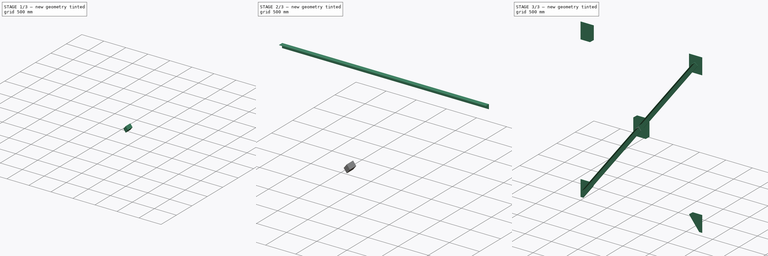
[diagram: build sequence overview — one tinted view per stage of 3, left to right]
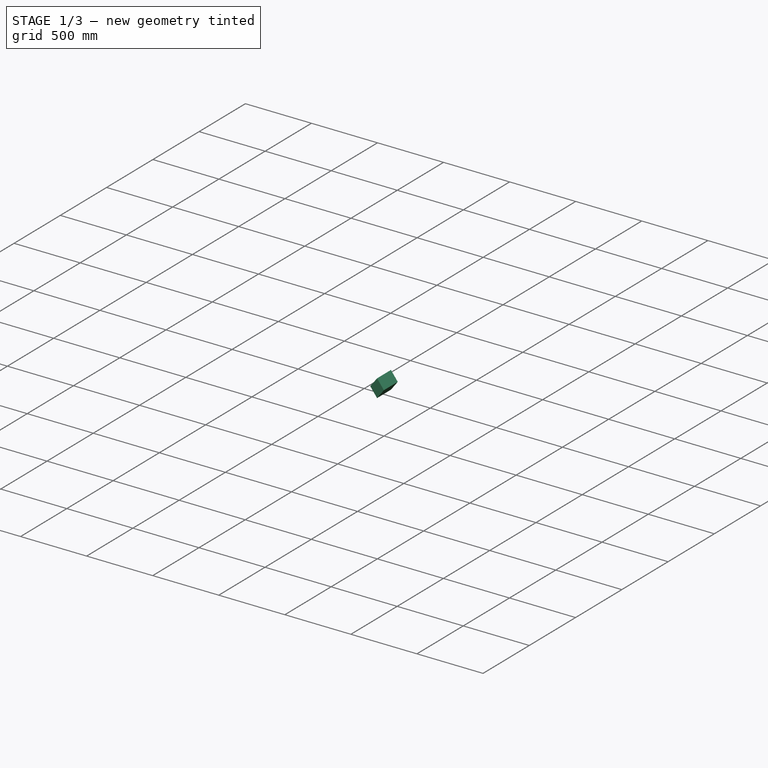
[diagram: stage 1 of 3 — iso view after this stage's code; geometry added in this stage tinted green]
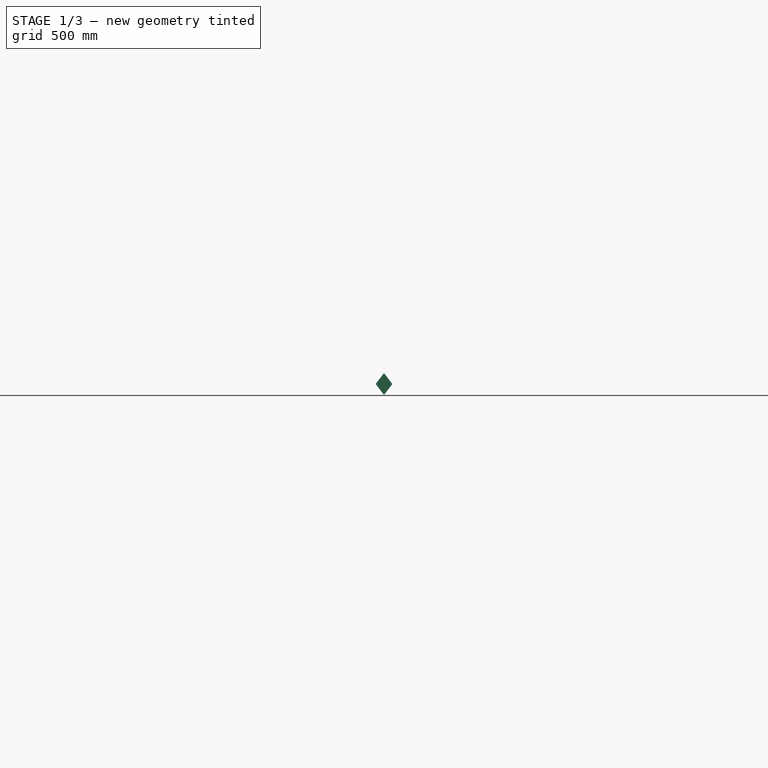
[diagram: stage 1 of 3 — front view after this stage's code; geometry added in this stage tinted green]
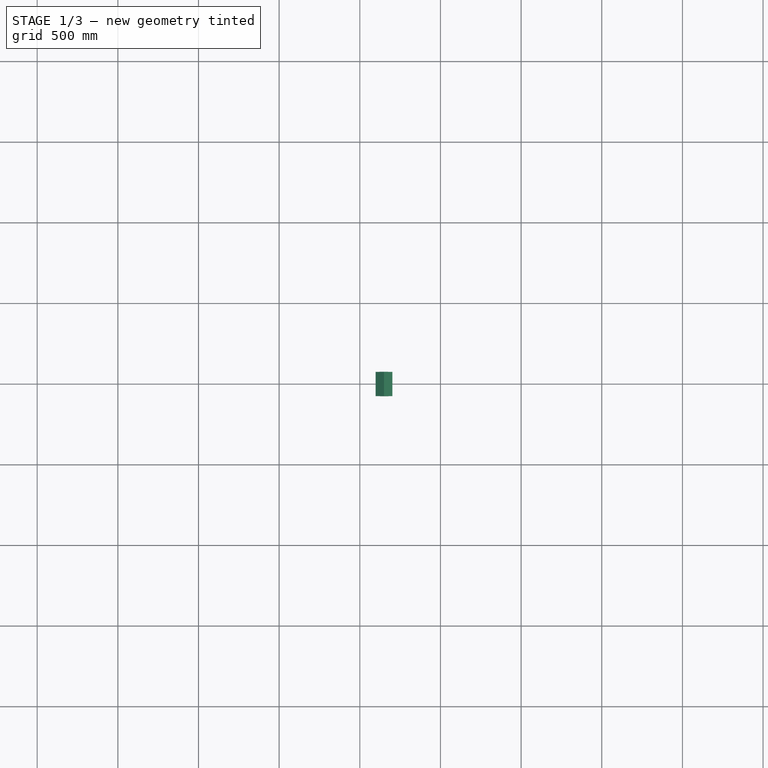
[diagram: stage 1 of 3 — top view after this stage's code; geometry added in this stage tinted green]
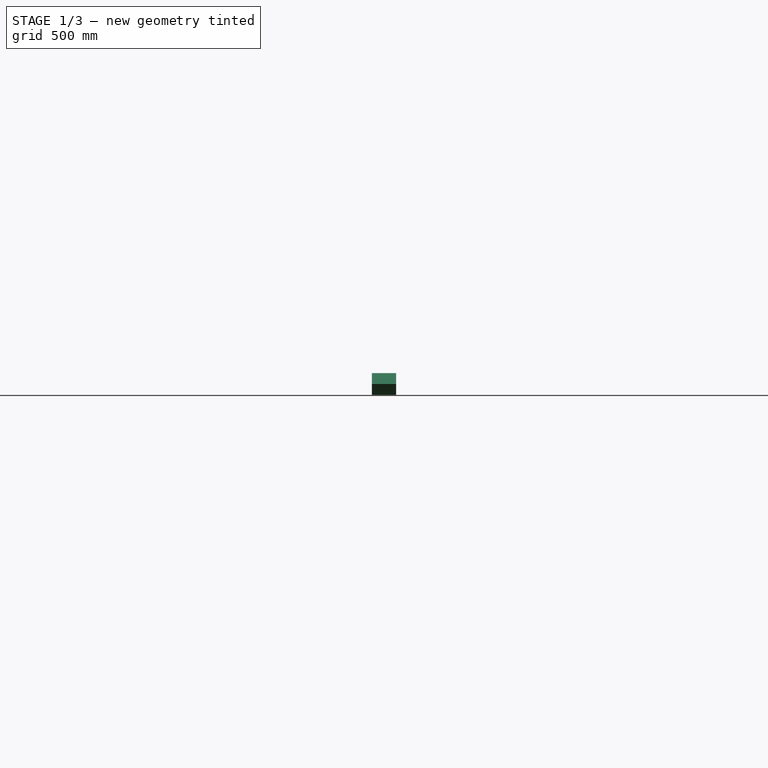
[diagram: stage 1 of 3 — right view after this stage's code; geometry added in this stage tinted green]
FCSTD DOCUMENT  (FreeCAD 1.0R39319 (Git))
Label: steelBrace02
License: All rights reserved
objects: App::Part×3, Sketcher::SketchObject×2, Part::Extrusion×2, Part::FeaturePython×2, Spreadsheet::Sheet×1, Part::Cut×1
note: 9 computed .brp shape members not serialized (recipe doc carries the construction recipe); baked Part::Feature solids carry a one-line shape summary decoded from their .brp

FEATURE [Part::FeaturePython] AngleSteel  # WARN: FeaturePython — macro-defined, semantics opaque (R4)
  A = 75
  B = 75
  JPN = 等辺山形鋼
  L = 3430.21
  Placement = pos=(0,0,0) rot=(-0.57735,-0.57735,0.57735;4.18879rad)
  Solid = true
  Standard = L20x20x3  L=5500
  g0 = 7.85
  mass = 23.4977
  size = 10
  standard = SS_Equal
  t = 3
  type = 00_Angle
  expr: L = Spreadsheet.C0 - Spreadsheet.La
FEATURE [App::Part] Part002
  Group = -> [AngleSteel001]
  Origin = -> Origin002
  Placement = pos=(106.476,-37.5,-2861.12) rot=(0,1,0;-0.916714rad)
  expr: .Placement.Base.x = Spreadsheet.x0
  expr: .Placement.Base.y = -Spreadsheet.B0 / 2
  expr: .Placement.Base.z = -Spreadsheet.H0 + Spreadsheet.y0
  expr: .Placement.Rotation.Angle = -Spreadsheet.k0
FEATURE [Sketcher::SketchObject] Sketch001
  ArcFitTolerance = 1e-06
  FullyConstrained = true
  MakeInternals = false
  Placement = pos=(0,0,0) rot=(1,0,0;1.5708rad)
  expr: Constraints[10] = Spreadsheet.H0
  expr: Constraints[15] = Spreadsheet.k0 * 2
  expr: Constraints[18] = AngleSteel.B + 10
  expr: Constraints[19] = Spreadsheet.H0 / 2
  expr: Constraints[20] = Spreadsheet.W0 / 2
  expr: Constraints[21] = Spreadsheet.k0
  expr: Constraints[22] = Spreadsheet.B0 + 10
  expr: Constraints[9] = Spreadsheet.W0
  sketch-geometry (9):
    g0: LineSegment [constr] StartX=0 StartY=0 StartZ=0 EndX=0 EndY=-3000 EndZ=0
    g1: LineSegment [constr] StartX=0 StartY=-3000 StartZ=0 EndX=2300 EndY=-3000 EndZ=0
    g2: LineSegment [constr] StartX=2300 StartY=-3000 StartZ=0 EndX=2300 EndY=0 EndZ=0
    g3: LineSegment [constr] StartX=2300 StartY=0 StartZ=0 EndX=0 EndY=0 EndZ=0
    g4: GeomPoint [constr] X=1150 Y=-1500 Z=0
    g5: LineSegment StartX=1150 StartY=-1432.54 StartZ=0 EndX=1201.72 EndY=-1500 EndZ=0
    g6: LineSegment StartX=1201.72 StartY=-1500 StartZ=0 EndX=1150 EndY=-1567.46 EndZ=0
    g7: LineSegment StartX=1150 StartY=-1567.46 StartZ=0 EndX=1098.28 EndY=-1500 EndZ=0
    g8: LineSegment StartX=1098.28 StartY=-1500 StartZ=0 EndX=1150 EndY=-1432.54 EndZ=0
  constraints (24):
    c: Coincident(g0,g1)
    c: Coincident(g1,g2)
    c: Coincident(g2,g3)
    c: Coincident(g3,g0)
    c: Vertical(g0)
    c: Vertical(g2)
    c: Horizontal(g1)
    c: Horizontal(g3)
    c: Coincident(g0,g-1)
    c: DistanceX(g1,g1) = 2300
    c: DistanceY(g2,g2) = 3000
    c: Coincident(g5,g6)
    c: Coincident(g6,g7)
    c: Coincident(g7,g8)
    c: Coincident(g8,g5)
    c: Angle(g7,g8) = 1.83343
    c: Parallel(g8,g6)
    c: Parallel(g7,g5)
    c: Distance(g6,g6) = 85
    c: DistanceY(g4,g-1) = 1500
    c: DistanceX(g-1,g4) = 1150
    c: Angle(g3,g8) = 0.916714
    c: Distance(g5,g5) = 85
    c: Symmetric(g5,g6,g4)
FEATURE [Part::Extrusion] Extrude001
  Base = -> Sketch001
  Dir = (0,-1,2e-16)
  DirMode = 2
  FaceMakerClass = Part::FaceMakerBullseye
  FaceMakerMode = 3
  LengthFwd = 150
  LengthRev = 0
  Solid = true
  Symmetric = true
  expr: LengthFwd = AngleSteel.B * 2
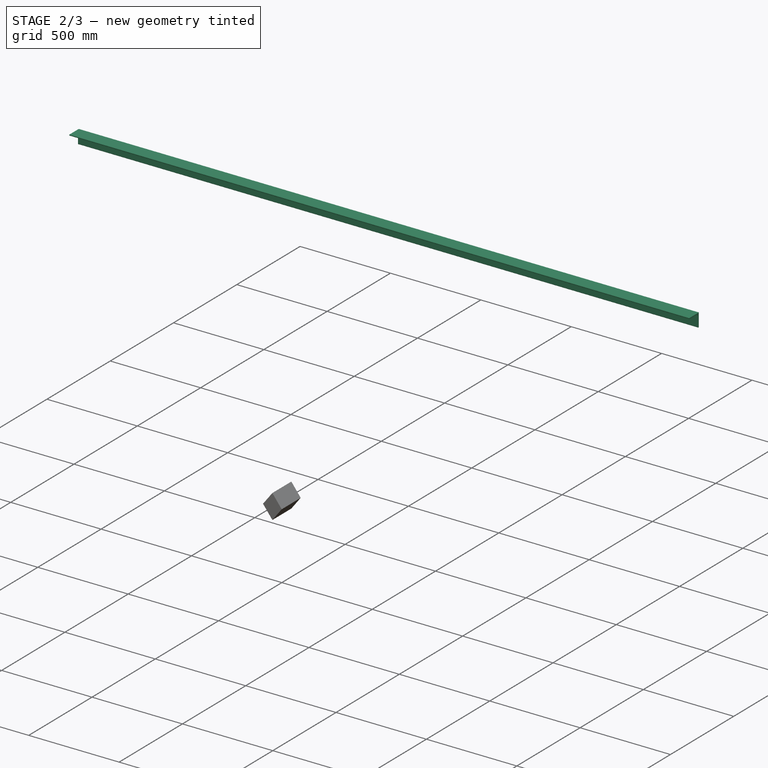
[diagram: stage 2 of 3 — iso view after this stage's code; geometry added in this stage tinted green]
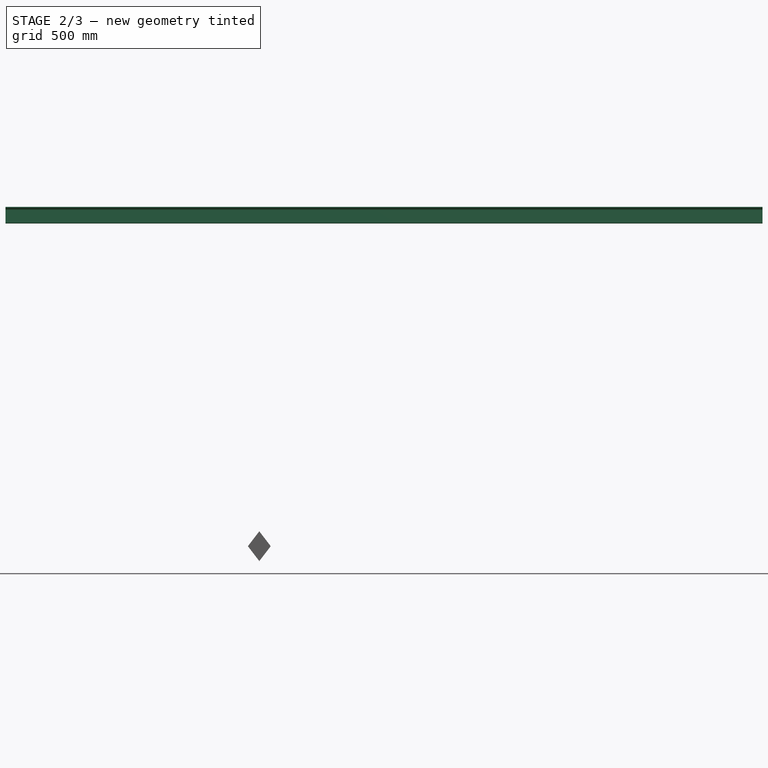
[diagram: stage 2 of 3 — front view after this stage's code; geometry added in this stage tinted green]
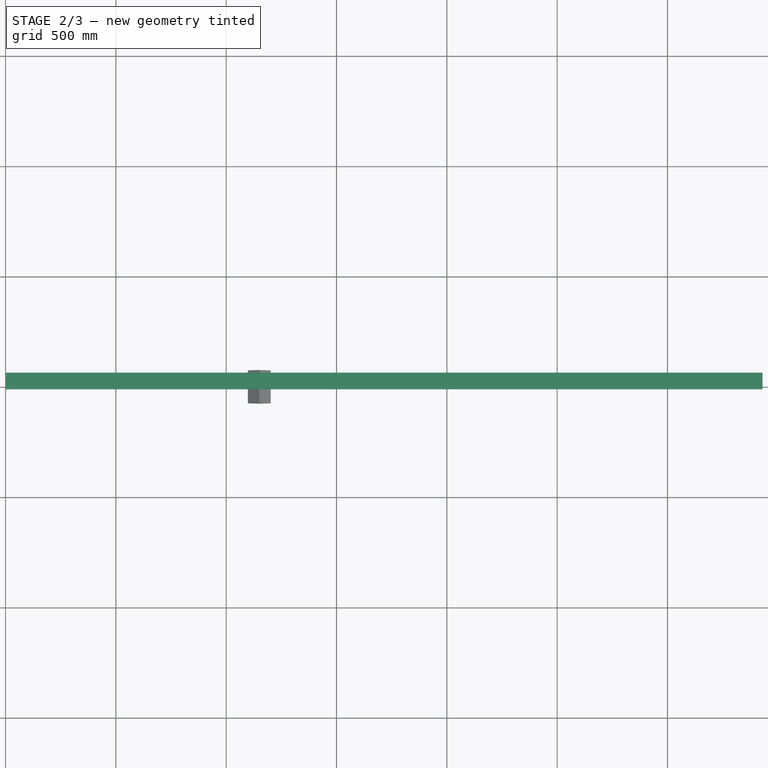
[diagram: stage 2 of 3 — top view after this stage's code; geometry added in this stage tinted green]
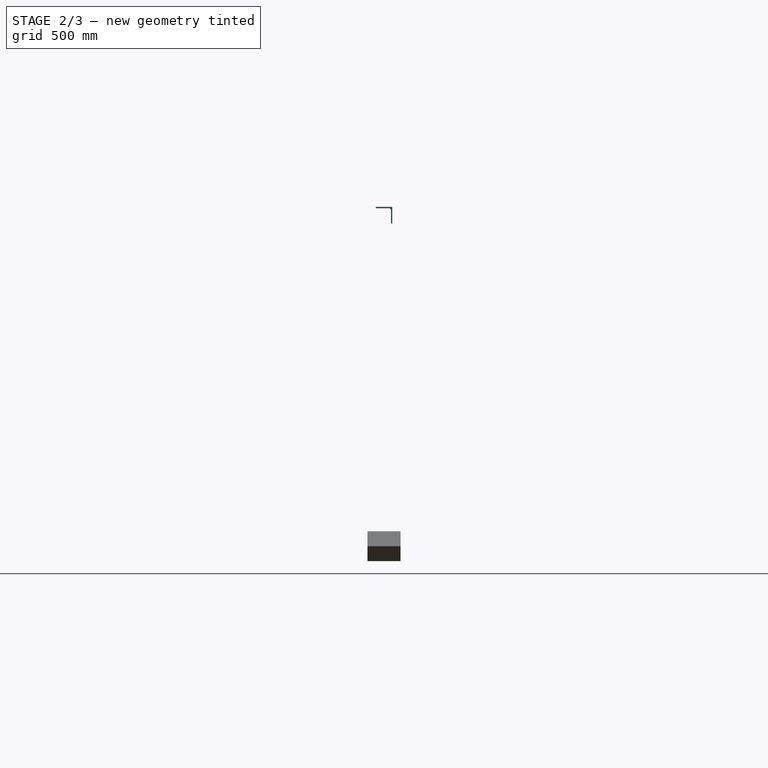
[diagram: stage 2 of 3 — right view after this stage's code; geometry added in this stage tinted green]
FEATURE [App::Part] Part001
  Group = -> [AngleSteel]
  Origin = -> Origin001
  Placement = pos=(106.476,-37.5,-138.881) rot=(0,1,0;0.916714rad)
  expr: .Placement.Base.x = Spreadsheet.x0
  expr: .Placement.Base.y = -AngleSteel.B / 2
  expr: .Placement.Base.z = -Spreadsheet.y0
  expr: .Placement.Rotation.Angle = Spreadsheet.k0
FEATURE [Part::FeaturePython] AngleSteel001  label="AngleSteelB"  # WARN: FeaturePython — macro-defined, semantics opaque (R4)
  A = 75
  B = 75
  JPN = 等辺山形鋼
  L = 3430.21
  Placement = pos=(0,0,0) rot=(-0.57735,-0.57735,0.57735;4.18879rad)
  Solid = true
  Standard = L20x20x3  L=5500
  g0 = 7.85
  mass = 23.4977
  size = 10
  standard = SS_Equal
  t = 3
  type = 00_Angle
  expr: L = Spreadsheet.C0 - Spreadsheet.La
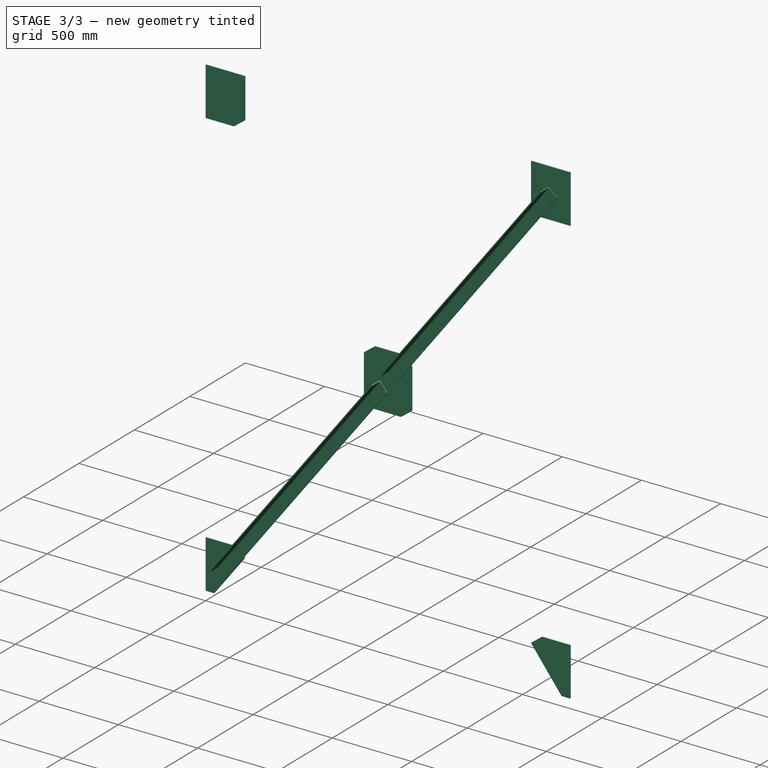
[diagram: stage 3 of 3 — iso view after this stage's code; geometry added in this stage tinted green]
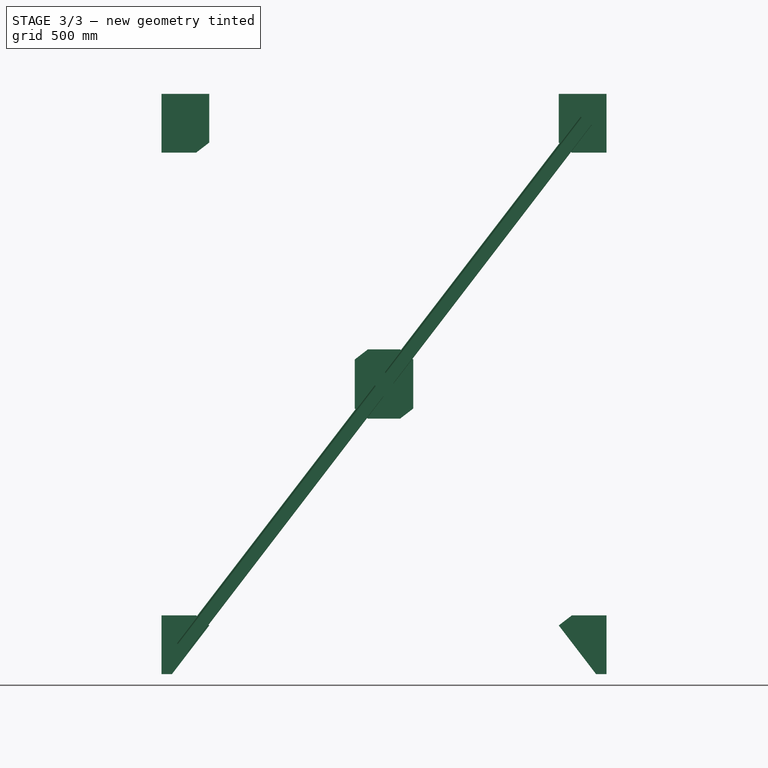
[diagram: stage 3 of 3 — front view after this stage's code; geometry added in this stage tinted green]
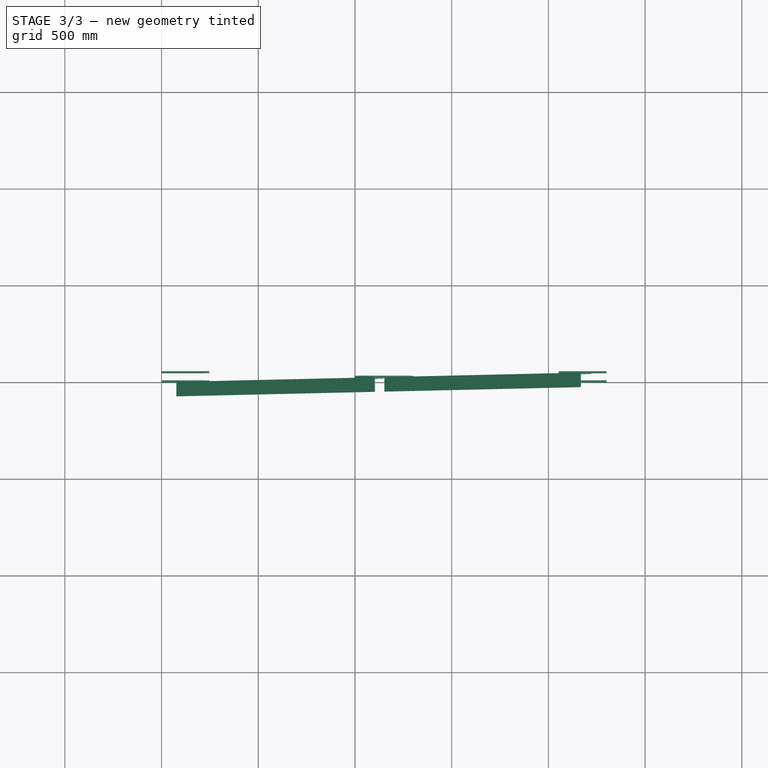
[diagram: stage 3 of 3 — top view after this stage's code; geometry added in this stage tinted green]
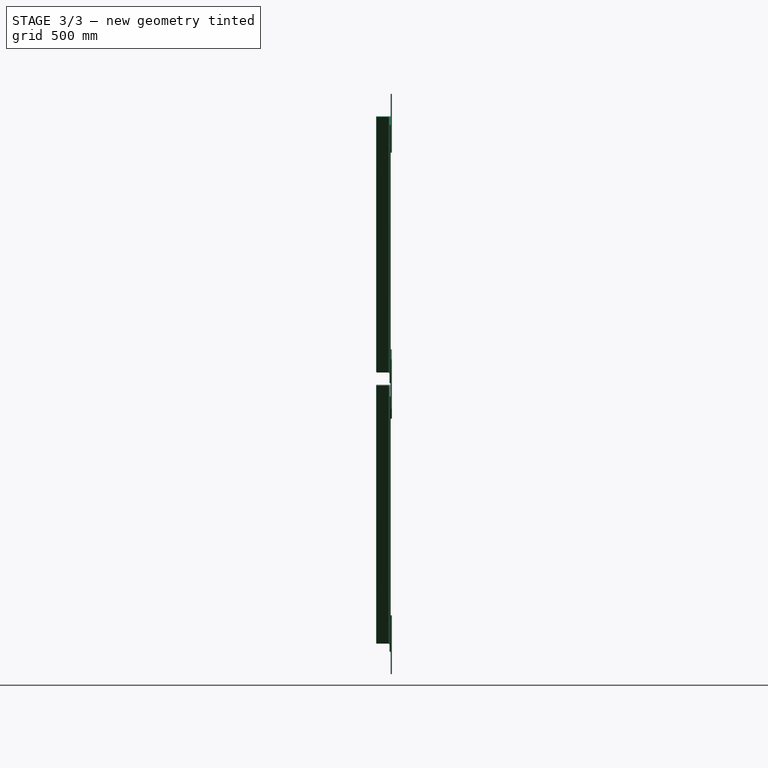
[diagram: stage 3 of 3 — right view after this stage's code; geometry added in this stage tinted green]
FEATURE [Sketcher::SketchObject] Sketch
  ArcFitTolerance = 0
  FullyConstrained = true
  MakeInternals = false
  Placement = pos=(0,0,0) rot=(1,0,0;1.5708rad)
  expr: Constraints[0] = Spreadsheet.H0
  expr: Constraints[23] = Spreadsheet.La / 2
  expr: Constraints[33] = Spreadsheet.B0 + 10
  expr: Constraints[34] = Spreadsheet.B0 + 10
  expr: Constraints[56] = Spreadsheet.H0
  expr: Constraints[67] = Spreadsheet.W0
  expr: Constraints[69] = Spreadsheet.La
  expr: Constraints[79] = Spreadsheet.B0 + 10
  sketch-geometry (30):
    g0: LineSegment [constr] StartX=0 StartY=0 StartZ=0 EndX=2300 EndY=-3000 EndZ=0
    g1: LineSegment [constr] StartX=0 StartY=-3000 StartZ=0 EndX=2300 EndY=0 EndZ=0
    g2: LineSegment StartX=0 StartY=0 StartZ=0 EndX=246.679 EndY=0 EndZ=0
    g3: LineSegment StartX=246.679 StartY=0 StartZ=0 EndX=246.679 EndY=-251.904 EndZ=0
    g4: LineSegment StartX=179.223 StartY=-303.621 StartZ=0 EndX=0 EndY=-303.621 EndZ=0
    g5: LineSegment StartX=0 StartY=-303.621 StartZ=0 EndX=0 EndY=0 EndZ=0
    g6: LineSegment StartX=2300 StartY=0 StartZ=0 EndX=2053.32 EndY=0 EndZ=0
    g7: LineSegment StartX=2053.32 StartY=0 StartZ=0 EndX=2053.32 EndY=-251.904 EndZ=0
    g8: LineSegment StartX=2120.78 StartY=-303.621 StartZ=0 EndX=2300 EndY=-303.621 EndZ=0
    g9: LineSegment StartX=2300 StartY=-303.621 StartZ=0 EndX=2300 EndY=0 EndZ=0
    g10: LineSegment StartX=0 StartY=-3000 StartZ=0 EndX=53.553 EndY=-3000 EndZ=0
    g11: LineSegment StartX=179.223 StartY=-2696.38 StartZ=0 EndX=0 EndY=-2696.38 EndZ=0
    g12: LineSegment StartX=0 StartY=-2696.38 StartZ=0 EndX=0 EndY=-3000 EndZ=0
    g13: LineSegment StartX=2300 StartY=-3000 StartZ=0 EndX=2246.45 EndY=-3000 EndZ=0
    g14: LineSegment StartX=2120.78 StartY=-2696.38 StartZ=0 EndX=2300 EndY=-2696.38 EndZ=0
    g15: LineSegment StartX=2300 StartY=-2696.38 StartZ=0 EndX=2300 EndY=-3000 EndZ=0
    g16: LineSegment StartX=179.223 StartY=-2696.38 StartZ=0 EndX=246.679 EndY=-2748.1 EndZ=0
    g17: LineSegment StartX=2120.78 StartY=-2696.38 StartZ=0 EndX=2053.32 EndY=-2748.1 EndZ=0
    g18: LineSegment StartX=1066.52 StartY=-1678.74 StartZ=0 EndX=1233.48 EndY=-1678.74 EndZ=0
    g19: LineSegment StartX=1300.94 StartY=-1627.02 StartZ=0 EndX=1300.94 EndY=-1372.98 EndZ=0
    g20: LineSegment StartX=1233.48 StartY=-1321.26 StartZ=0 EndX=1066.52 EndY=-1321.26 EndZ=0
    g21: LineSegment StartX=999.064 StartY=-1372.98 StartZ=0 EndX=999.064 EndY=-1627.02 EndZ=0
    g22: LineSegment StartX=1066.52 StartY=-1321.26 StartZ=0 EndX=999.064 EndY=-1372.98 EndZ=0
    g23: LineSegment StartX=999.064 StartY=-1627.02 StartZ=0 EndX=1066.52 EndY=-1678.74 EndZ=0
    g24: LineSegment StartX=1233.48 StartY=-1678.74 StartZ=0 EndX=1300.94 EndY=-1627.02 EndZ=0
    g25: LineSegment StartX=1300.94 StartY=-1372.98 StartZ=0 EndX=1233.48 EndY=-1321.26 EndZ=0
    g26: LineSegment StartX=179.223 StartY=-303.621 StartZ=0 EndX=246.679 EndY=-251.904 EndZ=0
    g27: LineSegment StartX=2120.78 StartY=-303.621 StartZ=0 EndX=2053.32 EndY=-251.904 EndZ=0
    g28: LineSegment StartX=2053.32 StartY=-2748.1 StartZ=0 EndX=2246.45 EndY=-3000 EndZ=0
    g29: LineSegment StartX=246.679 StartY=-2748.1 StartZ=0 EndX=53.553 EndY=-3000 EndZ=0
  constraints (82):
    c: DistanceY(g0,g1) = 3000
    c: Coincident(g2,g3)
    c: Coincident(g5,g2)
    c: Horizontal(g2)
    c: Vertical(g5)
    c: Coincident(g8,g9)
    c: Coincident(g9,g6)
    c: Vertical(g9)
    c: Coincident(g12,g10)
    c: Horizontal(g10)
    c: Vertical(g12)
    c: Coincident(g15,g13)
    c: Horizontal(g13)
    c: Vertical(g15)
    c: Horizontal(g20)
    c: Vertical(g21)
    c: Coincident(g20,g25)
    c: Coincident(g20,g22)
    c: Coincident(g18,g23)
    c: Coincident(g18,g24)
    c: Coincident(g21,g22)
    c: Equal(g25,g22)
    c: Equal(g23,g24)
    c: Distance(g20,g1) = 175
    c: Horizontal(g8)
    c: Coincident(g26,g4)
    c: Coincident(g27,g8)
    c: Coincident(g27,g7)
    c: Horizontal(g14)
    c: Symmetric(g3,g4,g0)
    c: Symmetric(g16,g11,g1)
    c: Horizontal(g16,g17)
    c: Horizontal(g11,g14)
    c: Distance(g26) = 85
    c: Distance(g27) = 85
    c: Equal(g3,g7)
    c: Vertical(g11,g4)
    c: Coincident(g13,g28)
    c: Coincident(g10,g29)
    c: Coincident(g0,g-1)
    c: PointOnObject(g1,g12)
    c: PointOnObject(g10,g-2)
    c: Equal(g1,g0)
    c: Horizontal(g4,g8)
    c: Vertical(g7)
    c: Coincident(g13,g0)
    c: Parallel(g0,g28)
    c: Coincident(g14,g15)
    c: Symmetric(g17,g14,g0)
    c: Coincident(g28,g17)
    c: Coincident(g17,g14)
    c: Coincident(g16,g11)
    c: Coincident(g29,g16)
    c: Horizontal(g11)
    c: Coincident(g12,g11)
    c: PointOnObject(g1,g10)
    c: DistanceY(g1,g1) = 3000
    c: Horizontal(g4)
    c: Vertical(g3)
    c: Coincident(g2,g0)
    c: Coincident(g6,g1)
    c: Horizontal(g6)
    c: PointOnObject(g1,g-1)
    c: Coincident(g7,g6)
    c: PointOnObject(g26,g3)
    c: Parallel(g29,g1)
    c: Equal(g26,g16)
    c: DistanceX(g0,g0) = 2300
    c: Coincident(g5,g4)
    c: Distance(g1,g16) = 350
    c: Coincident(g19,g25)
    c: Symmetric(g18,g19,g0)
    c: Symmetric(g19,g20,g1)
    c: Symmetric(g21,g20,g0)
    c: Coincident(g23,g21)
    c: Symmetric(g18,g21,g1)
    c: Coincident(g24,g19)
    c: Horizontal(g18)
    c: Distance(g0,g0) = 3780.21
    c: Distance(g25,g25) = 85
    c: Equal(g25,g23)
    c: Symmetric(g8,g7,g1)
FEATURE [Spreadsheet::Sheet] Spreadsheet
  cells = A1(key)='02; A2='W0; B2(W0)=2300; C2='x0; D2(x0)==La / 2 * sin(k1); A3='H0; B3(H0)=3000; C3='y0; D3(y0)==La / 2 * cos(k1); A4='C0; B4(C0)==sqrt(W0 ^ 2 + H0 ^ 2); C4='k1; D4(k1)==90 ° - k0; A5='La; B5(La)=350; A6='k0; B6(k0)==atan(H0 / W0); A7='gussetPlate t0; B7(t0)=6; A8='angle; B8(myAngle)='75x75x6; A9='GPL; B9(GPL)=300; A11='B0; B11(B0)=75; A13='20x20x3; B13=20; A14='25x25x3; B14=25; A15='30x30x3; B15=30; A16='30x30x5; B16=30; A17='40x40x3; B17=40; A18='40x40x5; B18=40; A19='50x50x4; B19=50; A20='50x50x6; B20=50; A21='65x65x6; B21=65; A22='65x65x8; B22=65; A23='75x75x6; B23=75; A24='75x75x9; B24=75; A25='75x75x12; B25=75; A26='90x90x7; B26=90; A27='90x90x10; B27=90; A28='90x90x13; B28=90; A29='100x100x7; B29=100; A30='100x100x10; B30=100; A31='100x100x13; B31=100; A32='130x130x9; B32=130; A33='130x130x12; B33=130; A34='130x130x15; B34=130; A35='150x150x12; B35=150; A36='150x150x15; B36=150; A37='150x150x19; B37=150; A38='200x200x15; B38=200; A39='200x200x20; B39=200; A40='200x200x25; B40=200
FEATURE [Part::Extrusion] Extrude
  Base = -> Sketch
  Dir = (0,-1,2e-16)
  DirMode = 2
  FaceMakerClass = Part::FaceMakerBullseye
  FaceMakerMode = 3
  LengthFwd = -6
  LengthRev = 0
  Solid = true
  Symmetric = false
  expr: LengthFwd = -Spreadsheet.t0
FEATURE [Part::Cut] Cut
  Base = -> Part002
  Refine = true
  Tool = -> Extrude001
FEATURE [App::Part] Part  label="steelBraceAssy"
  Group = -> [Spreadsheet,Extrude,Sketch,Part001,Extrude001,Sketch001,Part002,Cut]
  JPN = ブレース
  Origin = -> Origin
  Placement = pos=(519.928,-23.5158,-400.349) rot=(0,0,1;0rad)
  Standard = L75x75x6  W0=2500  H0=2500
  count = 1
  g0 = 7.85
  mass = 52.9144
  material = SS41
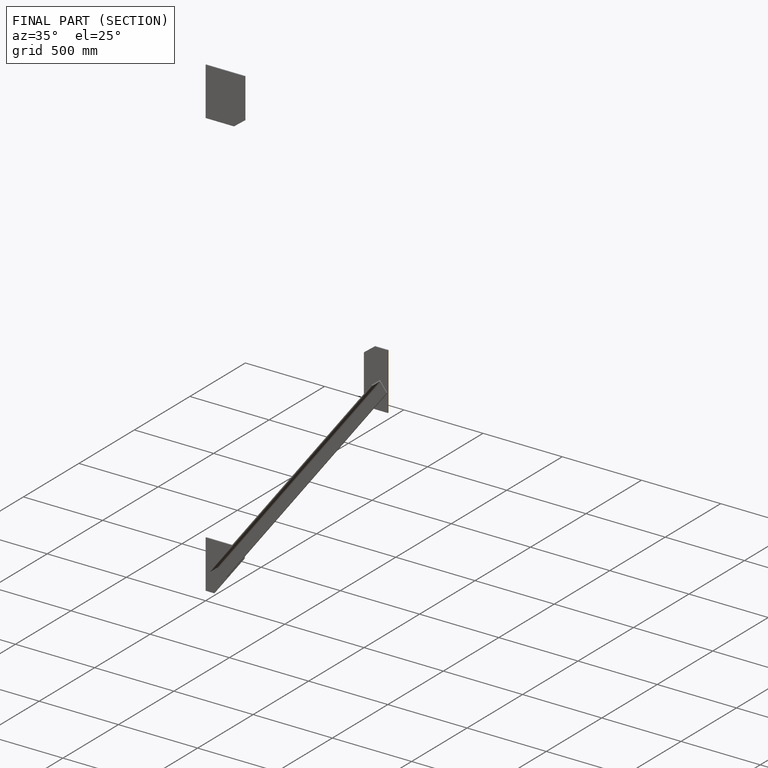
[diagram: finished part — half-section view (interior)]
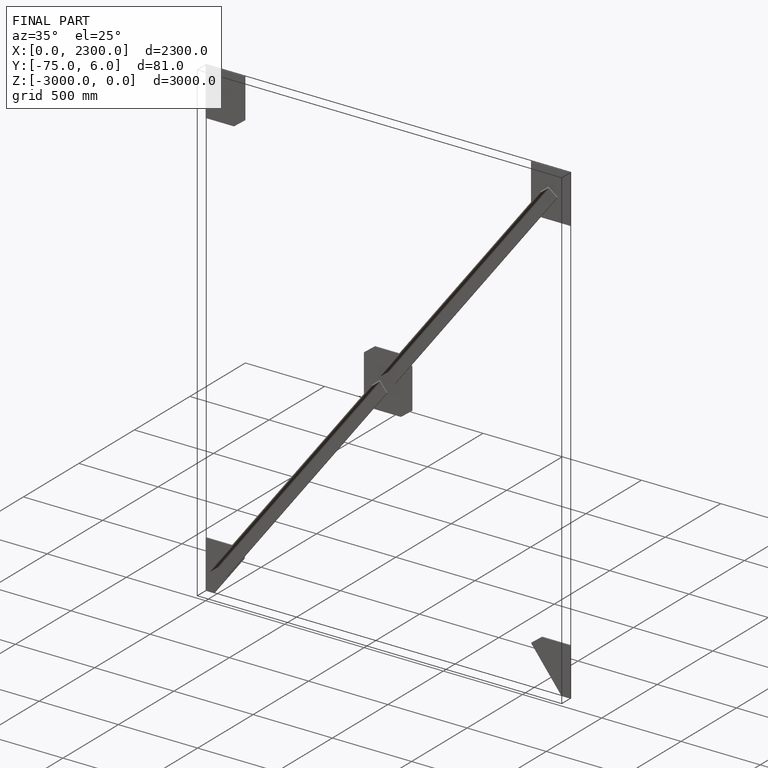
[diagram: finished part — iso view with bounding-box wireframe]
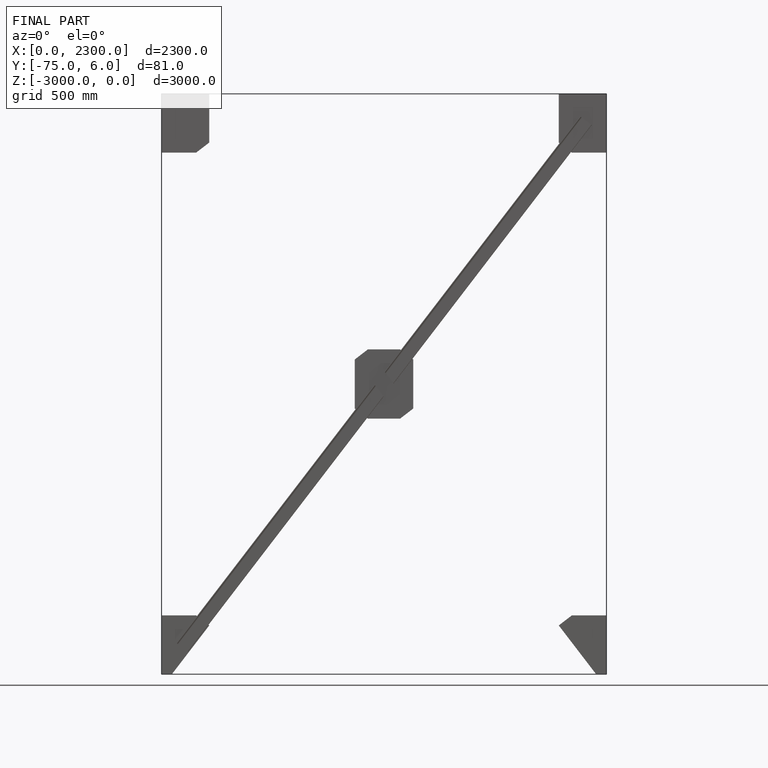
[diagram: finished part — front view with bounding-box wireframe]
